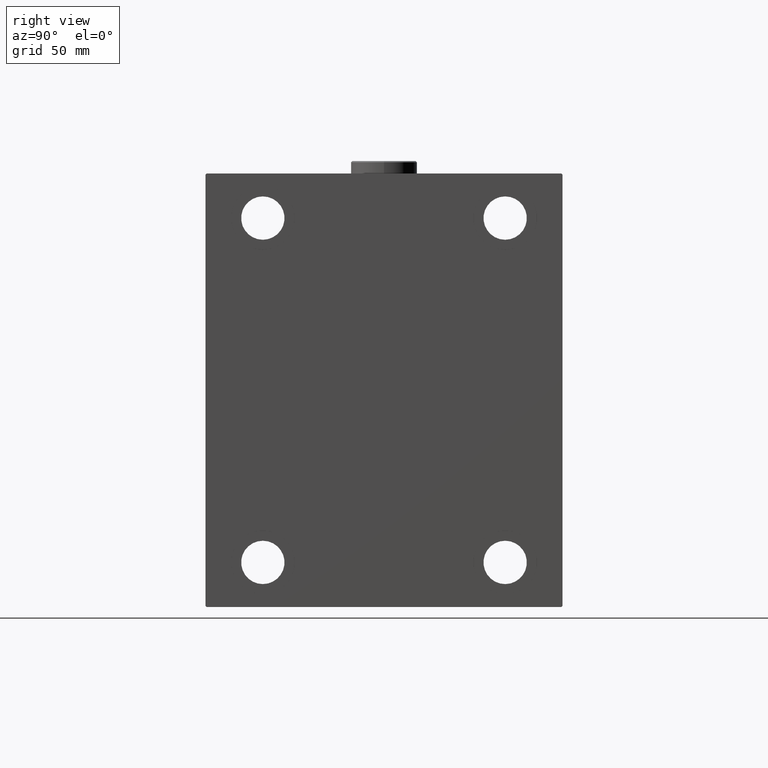
[diagram: clean part render]
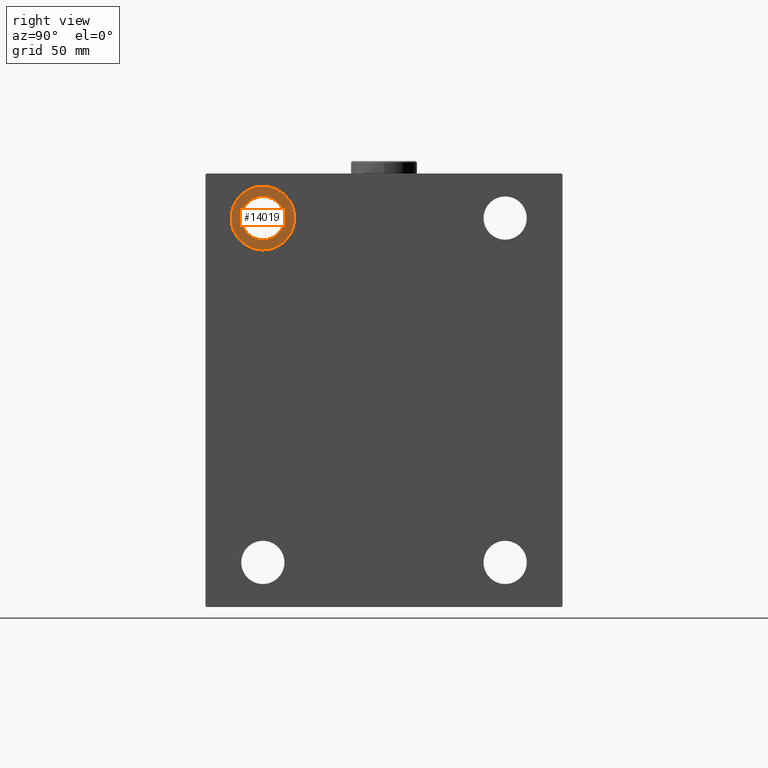
[diagram: same view with one face highlighted and labeled with its STEP entity id]
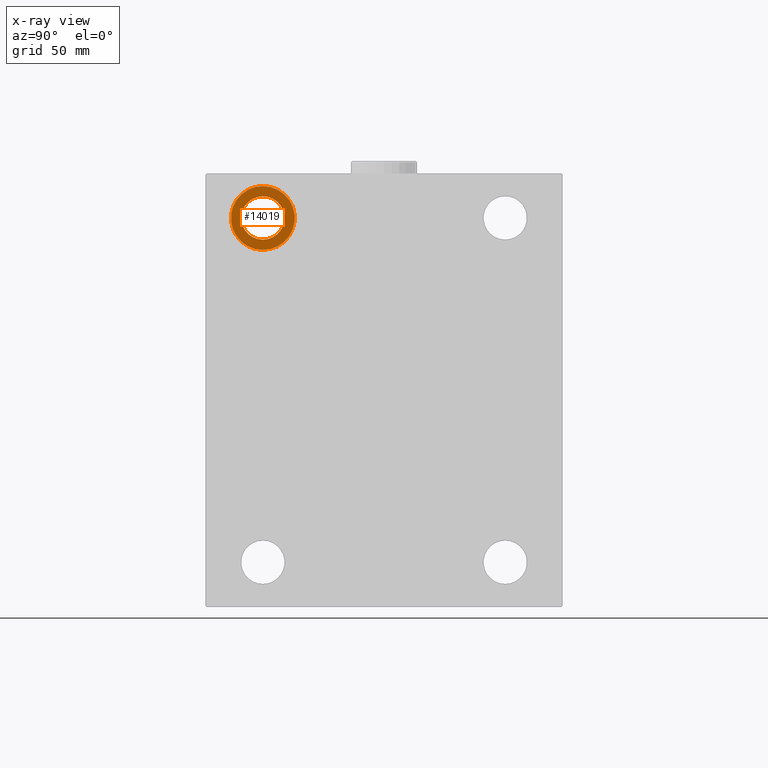
[diagram: x-ray of the same camera — body ghosted, the highlighted face saturated]
A machine part, right view. The second image highlights one B-rep face of the part: STEP entity #14019.
The next image is the same camera in x-ray: the body ghosted, the highlighted face saturated — about 0% of this face is hidden behind the body in this view.
In plain terms, the highlighted planar face has unit normal (1, 0, 0).
Its self-contained STEP definition (entity closure, byte-faithful):
#401 = DIRECTION ( 'NONE',  ( -1.000000000000000000, -0.000000000000000000, -0.000000000000000000 ) ) ;
#4011 = VERTEX_POINT ( 'NONE', #5180 ) ;
#5180 = CARTESIAN_POINT ( 'NONE',  ( 98.00000000000000000, -47.49999999999997868, 80.00000000000001421 ) ) ;
#5381 = CARTESIAN_POINT ( 'NONE',  ( 98.00000000000000000, -47.49999999999997868, 59.00000000000000000 ) ) ;
#6502 = VERTEX_POINT ( 'NONE', #41415 ) ;
#7343 = VERTEX_POINT ( 'NONE', #8711 ) ;
#7800 = AXIS2_PLACEMENT_3D ( 'NONE', #14015, #401, #17705 ) ;
#8610 = AXIS2_PLACEMENT_3D ( 'NONE', #41746, #41967, #42420 ) ;
#8711 = CARTESIAN_POINT ( 'NONE',  ( 98.00000000000000000, -47.49999999999997868, 55.00000000000000000 ) ) ;
#8738 = ORIENTED_EDGE ( 'NONE', *, *, #17153, .T. ) ;
#10094 = CARTESIAN_POINT ( 'NONE',  ( 98.00000000000000000, 0.000000000000000000, 0.000000000000000000 ) ) ;
#12853 = EDGE_LOOP ( 'NONE', ( #8738, #42219 ) ) ;
#13088 = DIRECTION ( 'NONE',  ( -1.000000000000000000, -0.000000000000000000, -0.000000000000000000 ) ) ;
#13324 = FACE_BOUND ( 'NONE', #12853, .T. ) ;
#14015 = CARTESIAN_POINT ( 'NONE',  ( 98.00000000000000000, -47.49999999999997868, 67.50000000000000000 ) ) ;
#14019 = ADVANCED_FACE ( 'NONE', ( #31762, #13324 ), #27641, .T. ) ;
#15848 = AXIS2_PLACEMENT_3D ( 'NONE', #10094, #24160, #38206 ) ;
#16525 = EDGE_CURVE ( 'NONE', #4011, #7343, #21783, .T. ) ;
#17153 = EDGE_CURVE ( 'NONE', #6502, #40230, #42423, .T. ) ;
#17705 = DIRECTION ( 'NONE',  ( 0.000000000000000000, 0.000000000000000000, 1.000000000000000000 ) ) ;
#18115 = AXIS2_PLACEMENT_3D ( 'NONE', #44657, #13088, #27170 ) ;
#19475 = EDGE_CURVE ( 'NONE', #7343, #4011, #42493, .T. ) ;
#20766 = DIRECTION ( 'NONE',  ( -1.000000000000000000, -0.000000000000000000, -0.000000000000000000 ) ) ;
#21783 = CIRCLE ( 'NONE', #7800, 12.50000000000001066 ) ;
#22615 = AXIS2_PLACEMENT_3D ( 'NONE', #34833, #20766, #24920 ) ;
#23775 = ORIENTED_EDGE ( 'NONE', *, *, #19475, .F. ) ;
#24160 = DIRECTION ( 'NONE',  ( 1.000000000000000000, 0.000000000000000000, -0.000000000000000000 ) ) ;
#24920 = DIRECTION ( 'NONE',  ( 0.000000000000000000, 0.000000000000000000, 1.000000000000000000 ) ) ;
#27170 = DIRECTION ( 'NONE',  ( 0.000000000000000000, 0.000000000000000000, -1.000000000000000000 ) ) ;
#27641 = PLANE ( 'NONE',  #15848 ) ;
#31762 = FACE_OUTER_BOUND ( 'NONE', #40946, .T. ) ;
#34800 = ORIENTED_EDGE ( 'NONE', *, *, #16525, .F. ) ;
#34833 = CARTESIAN_POINT ( 'NONE',  ( 98.00000000000000000, -47.49999999999997868, 67.50000000000000000 ) ) ;
#38206 = DIRECTION ( 'NONE',  ( 0.000000000000000000, 0.000000000000000000, 1.000000000000000000 ) ) ;
#39535 = CIRCLE ( 'NONE', #8610, 8.500000000000007105 ) ;
#40230 = VERTEX_POINT ( 'NONE', #5381 ) ;
#40946 = EDGE_LOOP ( 'NONE', ( #23775, #34800 ) ) ;
#41415 = CARTESIAN_POINT ( 'NONE',  ( 98.00000000000000000, -47.49999999999997868, 76.00000000000001421 ) ) ;
#41746 = CARTESIAN_POINT ( 'NONE',  ( 98.00000000000000000, -47.49999999999997868, 67.50000000000000000 ) ) ;
#41967 = DIRECTION ( 'NONE',  ( -1.000000000000000000, -0.000000000000000000, -0.000000000000000000 ) ) ;
#42219 = ORIENTED_EDGE ( 'NONE', *, *, #45554, .T. ) ;
#42420 = DIRECTION ( 'NONE',  ( 0.000000000000000000, 0.000000000000000000, -1.000000000000000000 ) ) ;
#42423 = CIRCLE ( 'NONE', #18115, 8.500000000000007105 ) ;
#42493 = CIRCLE ( 'NONE', #22615, 12.50000000000001066 ) ;
#44657 = CARTESIAN_POINT ( 'NONE',  ( 98.00000000000000000, -47.49999999999997868, 67.50000000000000000 ) ) ;
#45554 = EDGE_CURVE ( 'NONE', #40230, #6502, #39535, .T. ) ;